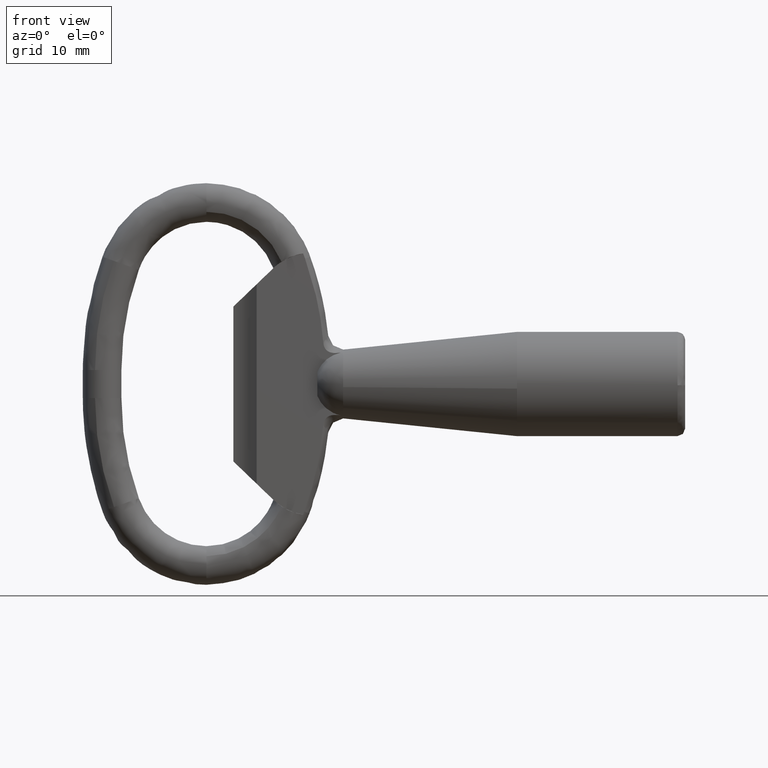
[diagram: clean part render]
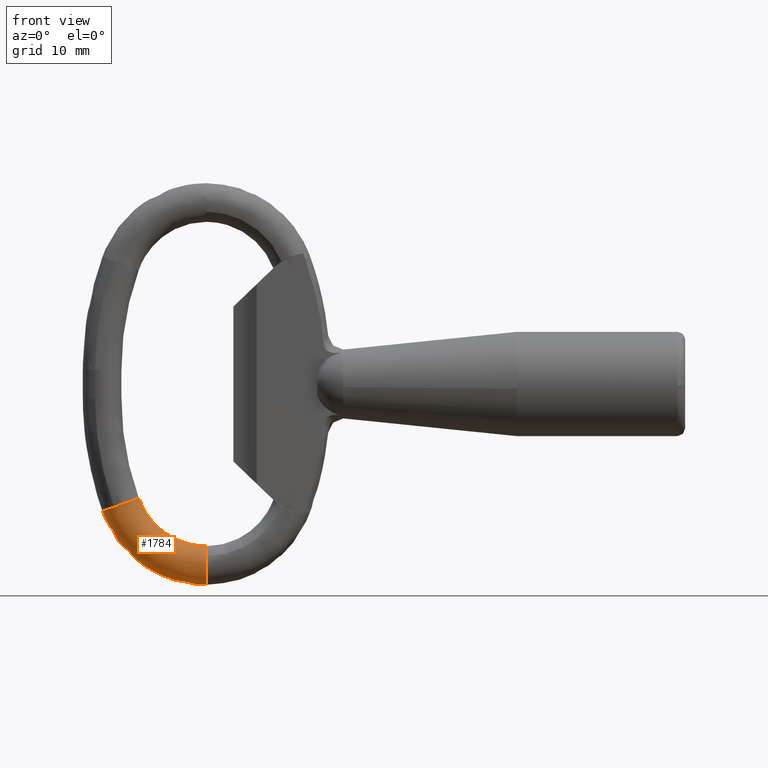
[diagram: same view with one face highlighted and labeled with its STEP entity id]
A machine part, front view. The second image highlights one B-rep face of the part: STEP entity #1784.
In plain terms, the highlighted face is a freeform B-spline surface patch.
Its self-contained STEP definition (entity closure, byte-faithful):
#1071=CARTESIAN_POINT('',(-74.188834033885612,-2.321964018835938,-15.938751157331700));
#1072=VERTEX_POINT('',#1071);
#1073=CARTESIAN_POINT('',(-75.510402069645423,0.919496679116842,-16.409074648385321));
#1074=VERTEX_POINT('',#1073);
#1075=CARTESIAN_POINT('',(-74.188834033885612,-2.321964018835938,-15.938751157331700));
#1076=CARTESIAN_POINT('',(-74.200213062587167,-2.317176657877645,-15.942799361358420));
#1077=CARTESIAN_POINT('',(-74.211566681524928,-2.312293756028973,-15.946838559627841));
#1078=CARTESIAN_POINT('',(-74.366493474009843,-2.244200481307421,-16.001956253868219));
#1079=CARTESIAN_POINT('',(-74.502198510043229,-2.167541451499820,-16.050240936452081));
#1080=CARTESIAN_POINT('',(-74.694118555086149,-2.032587922573096,-16.118533714367771));
#1081=CARTESIAN_POINT('',(-74.756134408865094,-1.984245185437301,-16.140602561566780));
#1082=CARTESIAN_POINT('',(-74.876061934787558,-1.880518421081564,-16.183281737787720));
#1083=CARTESIAN_POINT('',(-74.934063311366600,-1.824963996265504,-16.203924005553141));
#1084=CARTESIAN_POINT('',(-75.097618457135511,-1.651255481999434,-16.262134582628491));
#1085=CARTESIAN_POINT('',(-75.194271604552412,-1.525036167911866,-16.296537634069871));
#1086=CARTESIAN_POINT('',(-75.321788566613051,-1.321021705860704,-16.341929284809041));
#1087=CARTESIAN_POINT('',(-75.361450859777392,-1.250357018067129,-16.356048244240551));
#1088=CARTESIAN_POINT('',(-75.434353733079490,-1.104788210197090,-16.382000916705390));
#1089=CARTESIAN_POINT('',(-75.467222616231865,-1.030673852956404,-16.393702304611679));
#1090=CARTESIAN_POINT('',(-75.555455172870651,-0.804479532253671,-16.425113980983291));
#1091=CARTESIAN_POINT('',(-75.600575542532056,-0.648596870697258,-16.441178309982771));
#1092=CARTESIAN_POINT('',(-75.639086546463375,-0.447102128139699,-16.454889698374839));
#1093=CARTESIAN_POINT('',(-75.645893590261153,-0.406371641626024,-16.457313284595230));
#1094=CARTESIAN_POINT('',(-75.657526329768885,-0.325065162569973,-16.461455034096382));
#1095=CARTESIAN_POINT('',(-75.662370929311024,-0.284413890701403,-16.463179927793121));
#1096=CARTESIAN_POINT('',(-75.674008506280657,-0.162465939439291,-16.467323435505151));
#1097=CARTESIAN_POINT('',(-75.681818449235976,0.000115723926937,-16.470104160111742));
#1098=CARTESIAN_POINT('',(-75.674012722384902,0.162665768202981,-16.467324937680001));
#1099=CARTESIAN_POINT('',(-75.662385017099595,0.284566611258355,-16.463184945483150));
#1100=CARTESIAN_POINT('',(-75.657544826467884,0.325198273093414,-16.461461621799600));
#1101=CARTESIAN_POINT('',(-75.645924305805039,0.406457668331057,-16.457324223181761));
#1102=CARTESIAN_POINT('',(-75.639121588855460,0.447185390113293,-16.454902177709361));
#1103=CARTESIAN_POINT('',(-75.603045079249213,0.636012585528466,-16.442057563223820));
#1104=CARTESIAN_POINT('',(-75.562537398138446,0.779946204995340,-16.427635491206448));
#1105=CARTESIAN_POINT('',(-75.510402069645423,0.919496679116842,-16.409074648385321));
#1106=B_SPLINE_CURVE_WITH_KNOTS('',3,(#1075,#1076,#1077,#1078,#1079,#1080,#1081,#1082,#1083,#1084,#1085,#1086,#1087,#1088,#1089,#1090,#1091,#1092,#1093,#1094,#1095,#1096,#1097,#1098,#1099,#1100,#1101,#1102,#1103,#1104,#1105),.UNSPECIFIED.,.F.,.U.,(4,2,2,2,2,2,2,2,2,2,2,1,2,2,2,4),(0.120070264368605,0.125000000000006,0.187500000000006,0.218750000000006,0.250000000000006,0.312500000000010,0.343750000000011,0.375000000000013,0.437500000000014,0.453125000000014,0.468750000000014,0.500000000000016,0.531250000000017,0.546875000000017,0.562500000000017,0.620051507569224),.UNSPECIFIED.);
#1107=EDGE_CURVE('',#1072,#1074,#1106,.T.);
#1126=CARTESIAN_POINT('',(-70.967196743024346,0.000142196218100,-14.793024563418509));
#1127=VERTEX_POINT('',#1126);
#1278=CARTESIAN_POINT('',(-73.322634229001395,-2.499778089908740,-15.630654771570500));
#1279=VERTEX_POINT('',#1278);
#1280=CARTESIAN_POINT('',(-73.322634229001395,-2.499778089908740,-15.630654771570500));
#1281=CARTESIAN_POINT('',(-73.360990128078313,-2.499778089908709,-15.644295116526081));
#1282=CARTESIAN_POINT('',(-73.399010263830334,-2.498757019131328,-15.657815794210730));
#1283=CARTESIAN_POINT('',(-73.476660864998209,-2.494557823582392,-15.685431125666430));
#1284=CARTESIAN_POINT('',(-73.515268752742912,-2.491414627076931,-15.699161823997709));
#1285=CARTESIAN_POINT('',(-73.630463021191460,-2.478963927151735,-15.740131126294321));
#1286=CARTESIAN_POINT('',(-73.782381025579511,-2.454326066014358,-15.794164182978820));
#1287=CARTESIAN_POINT('',(-73.931090838125527,-2.414288947416001,-15.847061699993921));
#1288=CARTESIAN_POINT('',(-74.066602516647876,-2.370360762652474,-15.895267034520030));
#1289=CARTESIAN_POINT('',(-74.128080431998626,-2.347524110515261,-15.917137451895860));
#1290=CARTESIAN_POINT('',(-74.188834033885612,-2.321964018835938,-15.938751157331700));
#1291=B_SPLINE_CURVE_WITH_KNOTS('',3,(#1280,#1281,#1282,#1283,#1284,#1285,#1286,#1287,#1288,#1289,#1290),.UNSPECIFIED.,.F.,.U.,(4,2,2,1,2,4),(0.0,0.015625000000003,0.031250000000005,0.062500000000006,0.093750000000006,0.120070264368605),.UNSPECIFIED.);
#1292=EDGE_CURVE('',#1279,#1072,#1291,.T.);
#1294=CARTESIAN_POINT('',(-73.322634229001395,-2.499778089908740,-15.630654771570500));
#1295=CARTESIAN_POINT('',(-73.284297391070709,-2.499778089908772,-15.617021505621921));
#1296=CARTESIAN_POINT('',(-73.246296415248523,-2.498758027176683,-15.603507675252430));
#1297=CARTESIAN_POINT('',(-73.168686080485202,-2.494563161259088,-15.575908059611571));
#1298=CARTESIAN_POINT('',(-73.130096411854936,-2.491423125775564,-15.562184891023980));
#1299=CARTESIAN_POINT('',(-73.014951408268900,-2.478984039157490,-15.521237303527061));
#1300=CARTESIAN_POINT('',(-72.863084754401370,-2.454367273462238,-15.467230883847231));
#1301=CARTESIAN_POINT('',(-72.714400208375466,-2.414355177750878,-15.414356140234791));
#1302=CARTESIAN_POINT('',(-72.567297656535558,-2.366689250207930,-15.362044011794620));
#1303=CARTESIAN_POINT('',(-72.494356149642798,-2.338949567050173,-15.336104807512569));
#1304=CARTESIAN_POINT('',(-72.279151670409789,-2.244399706791299,-15.259574586963360));
#1305=CARTESIAN_POINT('',(-72.143523022240274,-2.167832766040688,-15.211342890653000));
#1306=CARTESIAN_POINT('',(-71.951654624189757,-2.033004466085784,-15.143111520506899));
#1307=CARTESIAN_POINT('',(-71.889645341042041,-1.984701407963205,-15.121060073069730));
#1308=CARTESIAN_POINT('',(-71.769711498894068,-1.881044999673920,-15.078409790565461));
#1309=CARTESIAN_POINT('',(-71.711730748467545,-1.825552395692154,-15.057790973138120));
#1310=CARTESIAN_POINT('',(-71.548200221480982,-1.652019706311587,-14.999637112357799));
#1311=CARTESIAN_POINT('',(-71.451503615721421,-1.525878854423695,-14.965250414770241));
#1312=CARTESIAN_POINT('',(-71.345147935723261,-1.355891824595532,-14.927428837565691));
#1313=CARTESIAN_POINT('',(-71.324610964226295,-1.321271736889153,-14.920125602840191));
#1314=CARTESIAN_POINT('',(-71.285016728307127,-1.250776547848104,-14.906045340430330));
#1315=CARTESIAN_POINT('',(-71.265911501375868,-1.214802784274633,-14.899251256616971));
#1316=CARTESIAN_POINT('',(-71.211260844102611,-1.105796910093541,-14.879816727666110));
#1317=CARTESIAN_POINT('',(-71.178392060698982,-1.031782615019602,-14.868128138395940));
#1318=CARTESIAN_POINT('',(-71.090122093790001,-0.805843749751452,-14.836738137524859));
#1319=CARTESIAN_POINT('',(-71.044926485130858,-0.650072503744302,-14.820665975228939));
#1320=CARTESIAN_POINT('',(-70.998571857680602,-0.408334949874689,-14.804181653014860));
#1321=CARTESIAN_POINT('',(-70.986805605181317,-0.326620049008372,-14.799997417841981));
#1322=CARTESIAN_POINT('',(-70.971172993969404,-0.163548613929211,-14.794438254535971));
#1323=CARTESIAN_POINT('',(-70.967196721437219,-0.081879842385369,-14.793024239583501));
#1324=CARTESIAN_POINT('',(-70.967196743024346,0.000142196218100,-14.793024563418509));
#1325=B_SPLINE_CURVE_WITH_KNOTS('',3,(#1294,#1295,#1296,#1297,#1298,#1299,#1300,#1301,#1302,#1303,#1304,#1305,#1306,#1307,#1308,#1309,#1310,#1311,#1312,#1313,#1314,#1315,#1316,#1317,#1318,#1319,#1320,#1321,#1322,#1323,#1324),.UNSPECIFIED.,.F.,.U.,(4,2,2,1,2,2,2,2,2,2,2,2,2,2,2,4),(0.0,0.015625000000003,0.031250000000006,0.062500000000007,0.093750000000008,0.125000000000009,0.187500000000011,0.218750000000009,0.250000000000008,0.312500000000009,0.328125000000008,0.343750000000007,0.375000000000005,0.437500000000003,0.468750000000002,0.499813095686117),.UNSPECIFIED.);
#1326=EDGE_CURVE('',#1279,#1127,#1325,.T.);
#1497=CARTESIAN_POINT('',(-62.221443634784507,0.000142196218092,-21.000079713873198));
#1498=VERTEX_POINT('',#1497);
#1499=CARTESIAN_POINT('',(-70.967196743024346,0.000142196218100,-14.793024563418509));
#1500=CARTESIAN_POINT('',(-70.966021970046981,0.000142196218092,-14.796372240105720));
#1501=CARTESIAN_POINT('',(-70.964866045494261,0.000142196218092,-14.799666173881089));
#1502=CARTESIAN_POINT('',(-70.918952397589507,0.000142196218092,-14.930501118797361));
#1503=CARTESIAN_POINT('',(-70.882665740820812,0.000142196218092,-15.026974324330149));
#1504=CARTESIAN_POINT('',(-70.795184975132997,0.000142196218092,-15.248530677089200));
#1505=CARTESIAN_POINT('',(-70.749316060908512,0.000142196218092,-15.358445828523701));
#1506=CARTESIAN_POINT('',(-70.605420824071999,0.000142196218092,-15.685384360939199));
#1507=CARTESIAN_POINT('',(-70.501102459953401,0.000142196218092,-15.899601728729049));
#1508=CARTESIAN_POINT('',(-70.163877889617595,0.000142196218092,-16.529232038446249));
#1509=CARTESIAN_POINT('',(-69.906645471835205,0.000142196218092,-16.931602781714950));
#1510=CARTESIAN_POINT('',(-69.046913177184493,0.000142196218092,-18.072224322271200));
#1511=CARTESIAN_POINT('',(-68.356272942611810,0.000142196218092,-18.742960704465549));
#1512=CARTESIAN_POINT('',(-66.025783991829698,0.000142196218092,-20.394983696863200));
#1513=CARTESIAN_POINT('',(-64.127730670370312,0.000142196218092,-21.000079713873198));
#1514=CARTESIAN_POINT('',(-62.221443634784507,0.000142196218092,-21.000079713873198));
#1515=B_SPLINE_CURVE_WITH_KNOTS('',3,(#1499,#1500,#1501,#1502,#1503,#1504,#1505,#1506,#1507,#1508,#1509,#1510,#1511,#1512,#1513,#1514),.UNSPECIFIED.,.F.,.U.,(4,2,2,2,2,2,2,4),(-0.000399719295448,0.0,0.015775719533975,0.031551439067950,0.063102878135901,0.126205756271802,0.252411512543604,0.504823025087207),.UNSPECIFIED.);
#1516=EDGE_CURVE('',#1127,#1498,#1515,.T.);
#1518=CARTESIAN_POINT('',(-62.221443634784507,0.919495983686714,-25.822106288389168));
#1519=VERTEX_POINT('',#1518);
#1533=CARTESIAN_POINT('',(-75.510402069645423,0.919496679116842,-16.409074648385321));
#1534=CARTESIAN_POINT('',(-75.455951681062587,0.919496673399821,-16.563816631778838));
#1535=CARTESIAN_POINT('',(-75.389153651823904,0.919496666633553,-16.743634694799059));
#1536=CARTESIAN_POINT('',(-75.257486209257536,0.919496653814226,-17.077099447844681));
#1537=CARTESIAN_POINT('',(-75.187744290757067,0.919496647258762,-17.244221169002849));
#1538=CARTESIAN_POINT('',(-74.968957123282635,0.919496627364525,-17.741318516447439));
#1539=CARTESIAN_POINT('',(-74.810345068735430,0.919496613797687,-18.067027708342671));
#1540=CARTESIAN_POINT('',(-74.297608103373364,0.919496572299994,-19.024356151243062));
#1541=CARTESIAN_POINT('',(-73.906496129597883,0.919496543569720,-19.636145244422949));
#1542=CARTESIAN_POINT('',(-72.599306337530535,0.919496455209877,-21.370416008002628));
#1543=CARTESIAN_POINT('',(-71.549214519011301,0.919496393444130,-22.390244626987180));
#1544=CARTESIAN_POINT('',(-68.005796070399029,0.919496207964844,-24.902081403977920));
#1545=CARTESIAN_POINT('',(-65.119879351750797,0.919496084689181,-25.822106353499478));
#1546=CARTESIAN_POINT('',(-62.221443634784507,0.919495983686714,-25.822106288389168));
#1547=B_SPLINE_CURVE_WITH_KNOTS('',3,(#1533,#1534,#1535,#1536,#1537,#1538,#1539,#1540,#1541,#1542,#1543,#1544,#1545,#1546),.UNSPECIFIED.,.F.,.U.,(4,2,2,2,2,2,4),(0.000318736611921,0.015775719533975,0.031551439067950,0.063102878135901,0.126205756271802,0.252411512543604,0.504823025087207),.UNSPECIFIED.);
#1548=EDGE_CURVE('',#1074,#1519,#1547,.T.);
#1553=CARTESIAN_POINT('',(-70.996181617145126,0.000142196218092,-14.710425458541790));
#1554=CARTESIAN_POINT('',(-70.996181617145126,-0.654335404236587,-14.710425458541790));
#1555=CARTESIAN_POINT('',(-71.250433597392473,-1.304782841111802,-14.799561959441670));
#1556=CARTESIAN_POINT('',(-72.123882710135092,-2.230353939944210,-15.105778640815119));
#1557=CARTESIAN_POINT('',(-72.737701289108912,-2.499778089908740,-15.320973190190180));
#1558=CARTESIAN_POINT('',(-73.972944870392084,-2.499778089908740,-15.754028974013369));
#1559=CARTESIAN_POINT('',(-74.586763449365733,-2.230353939944210,-15.969223523388401));
#1560=CARTESIAN_POINT('',(-75.460212562108410,-1.304782841111800,-16.275440204761860));
#1561=CARTESIAN_POINT('',(-75.714464542355756,-0.654335404236586,-16.364576705661740));
#1562=CARTESIAN_POINT('',(-75.714464542355756,0.314291444436339,-16.364576705661740));
#1563=CARTESIAN_POINT('',(-75.655884886106762,0.627512142965877,-16.344039655854409));
#1564=CARTESIAN_POINT('',(-75.546663801469592,0.919496092199420,-16.305748566441562));
#1565=CARTESIAN_POINT('',(-70.984780934387203,0.000142196218092,-14.742915050459100));
#1566=CARTESIAN_POINT('',(-70.984780934387203,-0.654335404236587,-14.742915050459100));
#1567=CARTESIAN_POINT('',(-71.239087310660665,-1.304782841111802,-14.831896547624190));
#1568=CARTESIAN_POINT('',(-72.112723293770074,-2.230353939944210,-15.137580734129759));
#1569=CARTESIAN_POINT('',(-72.726673196368097,-2.499778089908740,-15.352401071386049));
#1570=CARTESIAN_POINT('',(-73.962181052258344,-2.499778089908740,-15.784703793745210));
#1571=CARTESIAN_POINT('',(-74.576130954856097,-2.230353939944210,-15.999524131001509));
#1572=CARTESIAN_POINT('',(-75.449766937965578,-1.304782841111800,-16.305208317507098));
#1573=CARTESIAN_POINT('',(-75.704073314239068,-0.654335404236586,-16.394189814672181));
#1574=CARTESIAN_POINT('',(-75.704073314239068,0.314291444436339,-16.394189814672181));
#1575=CARTESIAN_POINT('',(-75.645481125145665,0.627512142965877,-16.373688477725349));
#1576=CARTESIAN_POINT('',(-75.536236673166485,0.919496092199420,-16.335463974523620));
#1577=CARTESIAN_POINT('',(-70.973470419129100,0.000142196218092,-14.775147260618310));
#1578=CARTESIAN_POINT('',(-70.973470419129100,-0.654335404236587,-14.775147260618310));
#1579=CARTESIAN_POINT('',(-71.227821455603191,-1.304782841111802,-14.864001486401410));
#1580=CARTESIAN_POINT('',(-72.101610862935942,-2.230353939944210,-15.169248448876040));
#1581=CARTESIAN_POINT('',(-72.715668584796006,-2.499778089908740,-15.383761525835800));
#1582=CARTESIAN_POINT('',(-73.951393415303684,-2.499778089908740,-15.815445920040650));
#1583=CARTESIAN_POINT('',(-74.565451137163450,-2.230353939944210,-16.029958997000460));
#1584=CARTESIAN_POINT('',(-75.439240544496300,-1.304782841111800,-16.335205959475122));
#1585=CARTESIAN_POINT('',(-75.693591580970391,-0.654335404236586,-16.424060185258210));
#1586=CARTESIAN_POINT('',(-75.693591580970391,0.314291444436339,-16.424060185258210));
#1587=CARTESIAN_POINT('',(-75.634989102166770,0.627512142965877,-16.403588171637779));
#1588=CARTESIAN_POINT('',(-75.525725465143111,0.919496092199420,-16.365418341435539));
#1589=CARTESIAN_POINT('',(-70.918952397589507,0.000142196218092,-14.930501118797361));
#1590=CARTESIAN_POINT('',(-70.918952397589507,-0.654335404236587,-14.930501118797361));
#1591=CARTESIAN_POINT('',(-71.172604925141911,-1.304782841111802,-15.021345655234700));
#1592=CARTESIAN_POINT('',(-72.043994697285683,-2.230353939944210,-15.333430067208450));
#1593=CARTESIAN_POINT('',(-72.656366069430504,-2.499778089908740,-15.552748179142849));
#1594=CARTESIAN_POINT('',(-73.888697303310508,-2.499778089908740,-15.994102187161150));
#1595=CARTESIAN_POINT('',(-74.501068675456295,-2.230353939944210,-16.213420299095350));
#1596=CARTESIAN_POINT('',(-75.372458447600096,-1.304782841111800,-16.525504711069051));
#1597=CARTESIAN_POINT('',(-75.626110975152500,-0.654335404236586,-16.616349247506399));
#1598=CARTESIAN_POINT('',(-75.626110975152500,0.314291444436339,-16.616349247506399));
#1599=CARTESIAN_POINT('',(-75.567669432804422,0.627512142965877,-16.595418666311240));
#1600=CARTESIAN_POINT('',(-75.458705859921963,0.919496092199420,-16.556393842223770));
#1601=CARTESIAN_POINT('',(-70.882665740820812,0.000142196218092,-15.026974324330149));
#1602=CARTESIAN_POINT('',(-70.882665740820812,-0.654335404236587,-15.026974324330149));
#1603=CARTESIAN_POINT('',(-71.134534601612401,-1.304782841111802,-15.122700209611599));
#1604=CARTESIAN_POINT('',(-71.999796822076306,-2.230353939944210,-15.451553851121950));
#1605=CARTESIAN_POINT('',(-72.607862041738599,-2.499778089908740,-15.682656581638700));
#1606=CARTESIAN_POINT('',(-73.831527608927502,-2.499778089908740,-16.147725861498301));
#1607=CARTESIAN_POINT('',(-74.439592828589795,-2.230353939944210,-16.378828592014798));
#1608=CARTESIAN_POINT('',(-75.304855049053714,-1.304782841111800,-16.707682233525151));
#1609=CARTESIAN_POINT('',(-75.556723909845402,-0.654335404236586,-16.803408118806601));
#1610=CARTESIAN_POINT('',(-75.556723909845402,0.314291444436339,-16.803408118806601));
#1611=CARTESIAN_POINT('',(-75.498693324318992,0.627512142965877,-16.781352874837751));
#1612=CARTESIAN_POINT('',(-75.390495975628767,0.919496092199420,-16.740231130149201));
#1613=CARTESIAN_POINT('',(-70.795184975132997,0.000142196218092,-15.248530677089200));
#1614=CARTESIAN_POINT('',(-70.795184975132997,-0.654335404236587,-15.248530677089200));
#1615=CARTESIAN_POINT('',(-71.044509889986912,-1.304782841111802,-15.350699434460450));
#1616=CARTESIAN_POINT('',(-71.901032720021405,-2.230353939944210,-15.701686712471201));
#1617=CARTESIAN_POINT('',(-72.502956310899506,-2.499778089908740,-15.948343912167500));
#1618=CARTESIAN_POINT('',(-73.714262513616802,-2.499778089908740,-16.444714880950851));
#1619=CARTESIAN_POINT('',(-74.316186104495003,-2.230353939944210,-16.691372080647401));
#1620=CARTESIAN_POINT('',(-75.172708934529496,-1.304782841111800,-17.042359358658199));
#1621=CARTESIAN_POINT('',(-75.422033849383396,-0.654335404236586,-17.144528116029448));
#1622=CARTESIAN_POINT('',(-75.422033849383396,0.314291444436339,-17.144528116029448));
#1623=CARTESIAN_POINT('',(-75.364589389001054,0.627512142965877,-17.120988434331110));
#1624=CARTESIAN_POINT('',(-75.257484863793835,0.919496092199420,-17.077098972839959));
#1625=CARTESIAN_POINT('',(-70.749316060908512,0.000142196218092,-15.358445828523701));
#1626=CARTESIAN_POINT('',(-70.749316060908512,-0.654335404236587,-15.358445828523701));
#1627=CARTESIAN_POINT('',(-70.997307104972307,-1.304782841111802,-15.463810925122599));
#1628=CARTESIAN_POINT('',(-71.849247598001611,-2.230353939944210,-15.825778804580750));
#1629=CARTESIAN_POINT('',(-72.447950939927892,-2.499778089908740,-16.080152649790200));
#1630=CARTESIAN_POINT('',(-73.652776739505597,-2.499778089908740,-16.592052534063200));
#1631=CARTESIAN_POINT('',(-74.251480081430799,-2.230353939944210,-16.846426379272700));
#1632=CARTESIAN_POINT('',(-75.103420574460102,-1.304782841111800,-17.208394258730848));
#1633=CARTESIAN_POINT('',(-75.351411618525006,-0.654335404236586,-17.313759355329449));
#1634=CARTESIAN_POINT('',(-75.351411618525006,0.314291444436339,-17.313759355329449));
#1635=CARTESIAN_POINT('',(-75.294274481972451,0.627512142965877,-17.289483237073132));
#1636=CARTESIAN_POINT('',(-75.187742958455260,0.919496092199420,-17.244220698224041));
#1637=CARTESIAN_POINT('',(-70.605420824071999,0.000142196218092,-15.685384360939199));
#1638=CARTESIAN_POINT('',(-70.605420824071999,-0.654335404236587,-15.685384360939199));
#1639=CARTESIAN_POINT('',(-70.849227385977500,-1.304782841111802,-15.800256849762500));
#1640=CARTESIAN_POINT('',(-71.686792642970687,-2.230353939944210,-16.194886120078550));
#1641=CARTESIAN_POINT('',(-72.275393751317694,-2.499778089908740,-16.472212840539900));
#1642=CARTESIAN_POINT('',(-73.459889897128491,-2.499778089908740,-17.030302906730501));
#1643=CARTESIAN_POINT('',(-74.048491005477601,-2.230353939944210,-17.307629627191801));
#1644=CARTESIAN_POINT('',(-74.886056262470802,-1.304782841111800,-17.702258897507850));
#1645=CARTESIAN_POINT('',(-75.129862824374200,-0.654335404236586,-17.817131386331699));
#1646=CARTESIAN_POINT('',(-75.129862824374200,0.314291444436339,-17.817131386331699));
#1647=CARTESIAN_POINT('',(-75.073689792511658,0.627512142965877,-17.790664764906680));
#1648=CARTESIAN_POINT('',(-74.968955830923932,0.919496092199420,-17.741318058493270));
#1649=CARTESIAN_POINT('',(-70.501102459953401,0.000142196218092,-15.899601728729049));
#1650=CARTESIAN_POINT('',(-70.501102459953401,-0.654335404236587,-15.899601728729049));
#1651=CARTESIAN_POINT('',(-70.741875437540997,-1.304782841111802,-16.020703671516699));
#1652=CARTESIAN_POINT('',(-71.569019216104110,-2.230353939944210,-16.436733408539300));
#1653=CARTESIAN_POINT('',(-72.150296604054390,-2.499778089908740,-16.729099361247350));
#1654=CARTESIAN_POINT('',(-73.320054553728994,-2.499778089908740,-17.317454257695651));
#1655=CARTESIAN_POINT('',(-73.901331941679203,-2.230353939944210,-17.609820210403701));
#1656=CARTESIAN_POINT('',(-74.728475720240297,-1.304782841111800,-18.025849947426249));
#1657=CARTESIAN_POINT('',(-74.969248697829897,-0.654335404236586,-18.146951890213948));
#1658=CARTESIAN_POINT('',(-74.969248697829897,0.314291444436339,-18.146951890213948));
#1659=CARTESIAN_POINT('',(-74.913774603793257,0.627512142965877,-18.119050002595660));
#1660=CARTESIAN_POINT('',(-74.810343803615837,0.919496092199420,-18.067027259134250));
#1661=CARTESIAN_POINT('',(-70.163877889617595,0.000142196218092,-16.529232038446249));
#1662=CARTESIAN_POINT('',(-70.163877889617595,-0.654335404236587,-16.529232038446249));
#1663=CARTESIAN_POINT('',(-70.394844356385491,-1.304782841111802,-16.668643668585201));
#1664=CARTESIAN_POINT('',(-71.188299161613514,-2.230353939944210,-17.147573919320600));
#1665=CARTESIAN_POINT('',(-71.745901538127100,-2.499778089908740,-17.484143367554100));
#1666=CARTESIAN_POINT('',(-72.868016084814684,-2.499778089908740,-18.161453023573952));
#1667=CARTESIAN_POINT('',(-73.425618461328312,-2.230353939944210,-18.498022471807449));
#1668=CARTESIAN_POINT('',(-74.219073266560599,-1.304782841111800,-18.976952722542851));
#1669=CARTESIAN_POINT('',(-74.450039733324203,-0.654335404236586,-19.116364352681799));
#1670=CARTESIAN_POINT('',(-74.450039733324203,0.314291444436339,-19.116364352681799));
#1671=CARTESIAN_POINT('',(-74.396825059381882,0.627512142965877,-19.084243913097790));
#1672=CARTESIAN_POINT('',(-74.297606921571713,0.919496092199420,-19.024355728785750));
#1673=CARTESIAN_POINT('',(-69.906645471835205,0.000142196218092,-16.931602781714950));
#1674=CARTESIAN_POINT('',(-69.906645471835205,-0.654335404236587,-16.931602781714950));
#1675=CARTESIAN_POINT('',(-70.130131604389305,-1.304782841111802,-17.082715377313949));
#1676=CARTESIAN_POINT('',(-70.897888708964800,-2.230353939944210,-17.601842750178399));
#1677=CARTESIAN_POINT('',(-71.437431961173402,-2.499778089908740,-17.966660827919949));
#1678=CARTESIAN_POINT('',(-72.523204471074791,-2.499778089908740,-18.700817799223149));
#1679=CARTESIAN_POINT('',(-73.062747723287600,-2.230353939944210,-19.065635876966748));
#1680=CARTESIAN_POINT('',(-73.830504827858903,-1.304782841111800,-19.584763249829098));
#1681=CARTESIAN_POINT('',(-74.053990960413003,-0.654335404236586,-19.735875845430201));
#1682=CARTESIAN_POINT('',(-74.053990960413003,0.314291444436339,-19.735875845430201));
#1683=CARTESIAN_POINT('',(-74.002499755472542,0.627512142965877,-19.701059503403709));
#1684=CARTESIAN_POINT('',(-73.906495005480082,0.919496092199420,-19.636144840486359));
#1685=CARTESIAN_POINT('',(-69.046913177184493,0.000142196218092,-18.072224322271200));
#1686=CARTESIAN_POINT('',(-69.046913177184493,-0.654335404236587,-18.072224322271200));
#1687=CARTESIAN_POINT('',(-69.245398242794408,-1.304782841111802,-18.256506261009900));
#1688=CARTESIAN_POINT('',(-69.927267482457694,-2.230353939944210,-18.889582533322951));
#1689=CARTESIAN_POINT('',(-70.406452819793202,-2.499778089908740,-19.334478489124351));
#1690=CARTESIAN_POINT('',(-71.370761546285109,-2.499778089908740,-20.229783539447752));
#1691=CARTESIAN_POINT('',(-71.849946883612290,-2.230353939944210,-20.674679495244948));
#1692=CARTESIAN_POINT('',(-72.531816123283889,-1.304782841111800,-21.307755767562199));
#1693=CARTESIAN_POINT('',(-72.730301188893804,-0.654335404236586,-21.492037706296699));
#1694=CARTESIAN_POINT('',(-72.730301188893804,0.314291444436339,-21.492037706296699));
#1695=CARTESIAN_POINT('',(-72.684570229777279,0.627512142965877,-21.449579147612269));
#1696=CARTESIAN_POINT('',(-72.599305390819211,0.919496092199420,-21.370415661026410));
#1697=CARTESIAN_POINT('',(-68.356272942611810,0.000142196218092,-18.742960704465549));
#1698=CARTESIAN_POINT('',(-68.356272942611810,-0.654335404236587,-18.742960704465549));
#1699=CARTESIAN_POINT('',(-68.534674148588493,-1.304782841111802,-18.946747697614750));
#1700=CARTESIAN_POINT('',(-69.147547939842497,-2.230353939944210,-19.646831009389050));
#1701=CARTESIAN_POINT('',(-69.578246550848505,-2.499778089908740,-20.138816332088101));
#1702=CARTESIAN_POINT('',(-70.444980978468294,-2.499778089908740,-21.128883646386800));
#1703=CARTESIAN_POINT('',(-70.875679589465904,-2.230353939944210,-21.620868969085802));
#1704=CARTESIAN_POINT('',(-71.488553380719992,-1.304782841111800,-22.320952280855948));
#1705=CARTESIAN_POINT('',(-71.666954586705003,-0.654335404236586,-22.524739274009299));
#1706=CARTESIAN_POINT('',(-71.666954586705003,0.314291444436339,-22.524739274009299));
#1707=CARTESIAN_POINT('',(-71.625850948846050,0.627512142965877,-22.477786750786770));
#1708=CARTESIAN_POINT('',(-71.549213696311554,0.919496092199420,-22.390244319827691));
#1709=CARTESIAN_POINT('',(-66.025783991829698,0.000142196218092,-20.394983696863200));
#1710=CARTESIAN_POINT('',(-66.025783991829698,-0.654335404236587,-20.394983696863200));
#1711=CARTESIAN_POINT('',(-66.136414438664289,-1.304782841111802,-20.646811618192000));
#1712=CARTESIAN_POINT('',(-66.516470733780892,-2.230353939944210,-21.511933196517550));
#1713=CARTESIAN_POINT('',(-66.783556258953610,-2.499778089908740,-22.119899579567651));
#1714=CARTESIAN_POINT('',(-67.321037025961999,-2.499778089908740,-23.343366248744449));
#1715=CARTESIAN_POINT('',(-67.588122551151500,-2.230353939944210,-23.951332631794500));
#1716=CARTESIAN_POINT('',(-67.968178846268003,-1.304782841111800,-24.816454210128452));
#1717=CARTESIAN_POINT('',(-68.078809293085811,-0.654335404236586,-25.068282131448900));
#1718=CARTESIAN_POINT('',(-68.078809293085811,0.314291444436339,-25.068282131448900));
#1719=CARTESIAN_POINT('',(-68.053320038138992,0.627512142965877,-25.010260978376660));
#1720=CARTESIAN_POINT('',(-68.005795620099533,0.919496092199420,-24.902081216385991));
#1721=CARTESIAN_POINT('',(-64.127730670370312,0.000142196218092,-21.000079713873198));
#1722=CARTESIAN_POINT('',(-64.127730670370312,-0.654335404236587,-21.000079713873198));
#1723=CARTESIAN_POINT('',(-64.183165612248985,-1.304782841111802,-21.269503863837699));
#1724=CARTESIAN_POINT('',(-64.373605036732798,-2.230353939944210,-22.195074962670098));
#1725=CARTESIAN_POINT('',(-64.507436825235899,-2.499778089908740,-22.845522399545349));
#1726=CARTESIAN_POINT('',(-64.776758842159495,-2.499778089908740,-24.154477600454701));
#1727=CARTESIAN_POINT('',(-64.910590630649892,-2.230353939944210,-24.804925037329902));
#1728=CARTESIAN_POINT('',(-65.101030055133805,-1.304782841111800,-25.730496136162351));
#1729=CARTESIAN_POINT('',(-65.156464997024997,-0.654335404236586,-25.999920286126851));
#1730=CARTESIAN_POINT('',(-65.156464997024997,0.314291444436339,-25.999920286126851));
#1731=CARTESIAN_POINT('',(-65.143692786413268,0.627512142965877,-25.937844961975021));
#1732=CARTESIAN_POINT('',(-65.119879148960806,0.919496092199420,-25.822106245376091));
#1733=CARTESIAN_POINT('',(-62.221443634784507,0.000142196218092,-21.000079713873198));
#1734=CARTESIAN_POINT('',(-62.221443634784507,-0.654335404236587,-21.000079713873198));
#1735=CARTESIAN_POINT('',(-62.221443634784507,-1.304782841111802,-21.269503863837748));
#1736=CARTESIAN_POINT('',(-62.221443634784507,-2.230353939944210,-22.195074962670152));
#1737=CARTESIAN_POINT('',(-62.221443634784507,-2.499778089908740,-22.845522399545349));
#1738=CARTESIAN_POINT('',(-62.221443634784507,-2.499778089908740,-24.154477600454701));
#1739=CARTESIAN_POINT('',(-62.221443634784507,-2.230353939944210,-24.804925037329951));
#1740=CARTESIAN_POINT('',(-62.221443634784507,-1.304782841111800,-25.730496136162351));
#1741=CARTESIAN_POINT('',(-62.221443634784507,-0.654335404236586,-25.999920286126901));
#1742=CARTESIAN_POINT('',(-62.221443634784507,0.314291444436339,-25.999920286126891));
#1743=CARTESIAN_POINT('',(-62.221443634784507,0.627512142965877,-25.937844961975060));
#1744=CARTESIAN_POINT('',(-62.221443634784507,0.919496092199420,-25.822106245376119));
#1745=B_SPLINE_SURFACE_WITH_KNOTS('',3,3,((#1553,#1565,#1577,#1589,#1601,#1613,#1625,#1637,#1649,#1661,#1673,#1685,#1697,#1709,#1721,#1733),(#1554,#1566,#1578,#1590,#1602,#1614,#1626,#1638,#1650,#1662,#1674,#1686,#1698,#1710,#1722,#1734),(#1555,#1567,#1579,#1591,#1603,#1615,#1627,#1639,#1651,#1663,#1675,#1687,#1699,#1711,#1723,#1735),(#1556,#1568,#1580,#1592,#1604,#1616,#1628,#1640,#1652,#1664,#1676,#1688,#1700,#1712,#1724,#1736),(#1557,#1569,#1581,#1593,#1605,#1617,#1629,#1641,#1653,#1665,#1677,#1689,#1701,#1713,#1725,#1737),(#1558,#1570,#1582,#1594,#1606,#1618,#1630,#1642,#1654,#1666,#1678,#1690,#1702,#1714,#1726,#1738),(#1559,#1571,#1583,#1595,#1607,#1619,#1631,#1643,#1655,#1667,#1679,#1691,#1703,#1715,#1727,#1739),(#1560,#1572,#1584,#1596,#1608,#1620,#1632,#1644,#1656,#1668,#1680,#1692,#1704,#1716,#1728,#1740),(#1561,#1573,#1585,#1597,#1609,#1621,#1633,#1645,#1657,#1669,#1681,#1693,#1705,#1717,#1729,#1741),(#1562,#1574,#1586,#1598,#1610,#1622,#1634,#1646,#1658,#1670,#1682,#1694,#1706,#1718,#1730,#1742),(#1563,#1575,#1587,#1599,#1611,#1623,#1635,#1647,#1659,#1671,#1683,#1695,#1707,#1719,#1731,#1743),(#1564,#1576,#1588,#1600,#1612,#1624,#1636,#1648,#1660,#1672,#1684,#1696,#1708,#1720,#1732,#1744)),.UNSPECIFIED.,.F.,.F.,.U.,(4,2,2,2,2,4),(4,2,2,2,2,2,2,4),(0.0,1.963432801364039,3.926865602728078,5.890298404092116,7.853731205456155,8.796178950110894),(0.0,0.122956891611168,0.688303531957690,1.253650172304213,2.384343452997257,4.645730014383347,9.168503137155524,18.214049382699880),.UNSPECIFIED.);
#1746=ORIENTED_EDGE('',*,*,#1292,.T.);
#1747=ORIENTED_EDGE('',*,*,#1107,.T.);
#1748=ORIENTED_EDGE('',*,*,#1548,.T.);
#1749=CARTESIAN_POINT('',(-62.221443634784507,0.000142196218093,-25.999920286126901));
#1750=VERTEX_POINT('',#1749);
#1751=CARTESIAN_POINT('',(-62.221443634784507,0.000142196218093,-25.999920286126901));
#1752=CARTESIAN_POINT('',(-62.221443634784507,0.314291366602873,-25.999920286126901));
#1753=CARTESIAN_POINT('',(-62.221443634784507,0.627511987759059,-25.937844992734568));
#1754=CARTESIAN_POINT('',(-62.221443634784507,0.919495983686714,-25.822106288389168));
#1755=B_SPLINE_CURVE_WITH_KNOTS('',3,(#1751,#1752,#1753,#1754),.UNSPECIFIED.,.F.,.U.,(4,4),(0.500000000000000,0.559999985134429),.UNSPECIFIED.);
#1756=EDGE_CURVE('',#1750,#1519,#1755,.T.);
#1757=ORIENTED_EDGE('',*,*,#1756,.F.);
#1758=CARTESIAN_POINT('',(-62.221443634784507,-2.188649087722205,-22.296493226061731));
#1759=VERTEX_POINT('',#1758);
#1760=CARTESIAN_POINT('',(-62.221443634784507,-2.188649087722205,-22.296493226061731));
#1761=CARTESIAN_POINT('',(-62.221443634784507,-2.389421957804363,-22.663919425365759));
#1762=CARTESIAN_POINT('',(-62.221443634784507,-2.499778089908740,-23.081134335179730));
#1763=CARTESIAN_POINT('',(-62.221443634784507,-2.499778089908740,-24.154477600454701));
#1764=CARTESIAN_POINT('',(-62.221443634784507,-2.230353939944210,-24.804925037329951));
#1765=CARTESIAN_POINT('',(-62.221443634784507,-1.304782841111800,-25.730496136162351));
#1766=CARTESIAN_POINT('',(-62.221443634784507,-0.654335404236586,-25.999920286126901));
#1767=CARTESIAN_POINT('',(-62.221443634784507,0.000142196218093,-25.999920286126901));
#1768=B_SPLINE_CURVE_WITH_KNOTS('',3,(#1760,#1761,#1762,#1763,#1764,#1765,#1766,#1767),.UNSPECIFIED.,.F.,.U.,(4,2,2,4),(0.169999999898907,0.250000000000000,0.375000000000000,0.500000000000000),.UNSPECIFIED.);
#1769=EDGE_CURVE('',#1759,#1750,#1768,.T.);
#1770=ORIENTED_EDGE('',*,*,#1769,.F.);
#1771=CARTESIAN_POINT('',(-62.221443634784507,0.000142196218092,-21.000079713873198));
#1772=CARTESIAN_POINT('',(-62.221443634784507,-0.654335404236587,-21.000079713873198));
#1773=CARTESIAN_POINT('',(-62.221443634784507,-1.304782841111802,-21.269503863837748));
#1774=CARTESIAN_POINT('',(-62.221443634784507,-1.934171187943565,-21.898892210669509));
#1775=CARTESIAN_POINT('',(-62.221443634784507,-2.075714348102780,-22.089815988590480));
#1776=CARTESIAN_POINT('',(-62.221443634784507,-2.188649087722205,-22.296493226061731));
#1777=B_SPLINE_CURVE_WITH_KNOTS('',3,(#1771,#1772,#1773,#1774,#1775,#1776),.UNSPECIFIED.,.F.,.U.,(4,2,4),(0.0,0.125000000000000,0.169999999898907),.UNSPECIFIED.);
#1778=EDGE_CURVE('',#1498,#1759,#1777,.T.);
#1779=ORIENTED_EDGE('',*,*,#1778,.F.);
#1780=ORIENTED_EDGE('',*,*,#1516,.F.);
#1781=ORIENTED_EDGE('',*,*,#1326,.F.);
#1782=EDGE_LOOP('',(#1746,#1747,#1748,#1757,#1770,#1779,#1780,#1781));
#1783=FACE_OUTER_BOUND('',#1782,.T.);
#1784=ADVANCED_FACE('',(#1783),#1745,.T.);